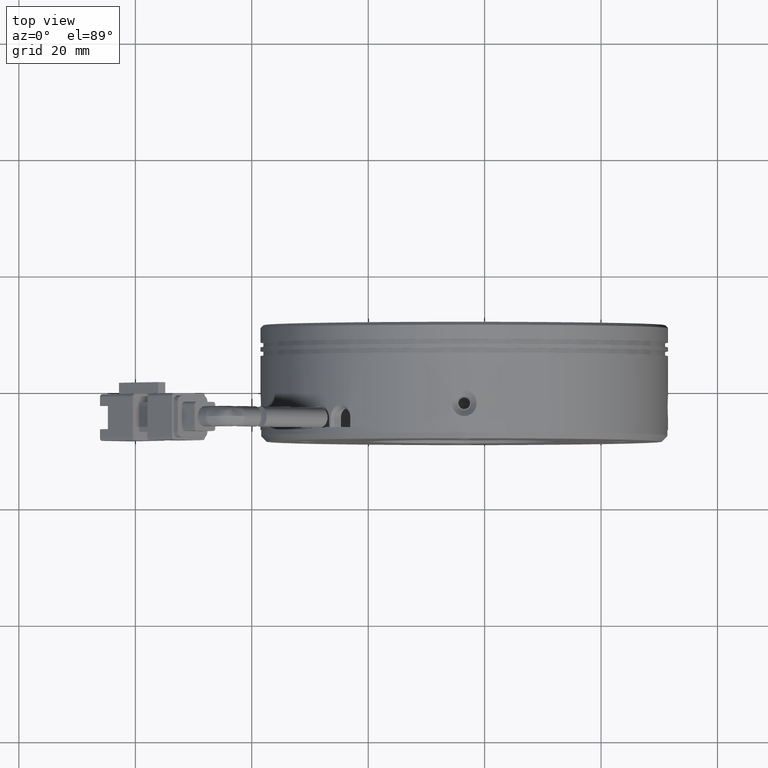
[diagram: clean part render]
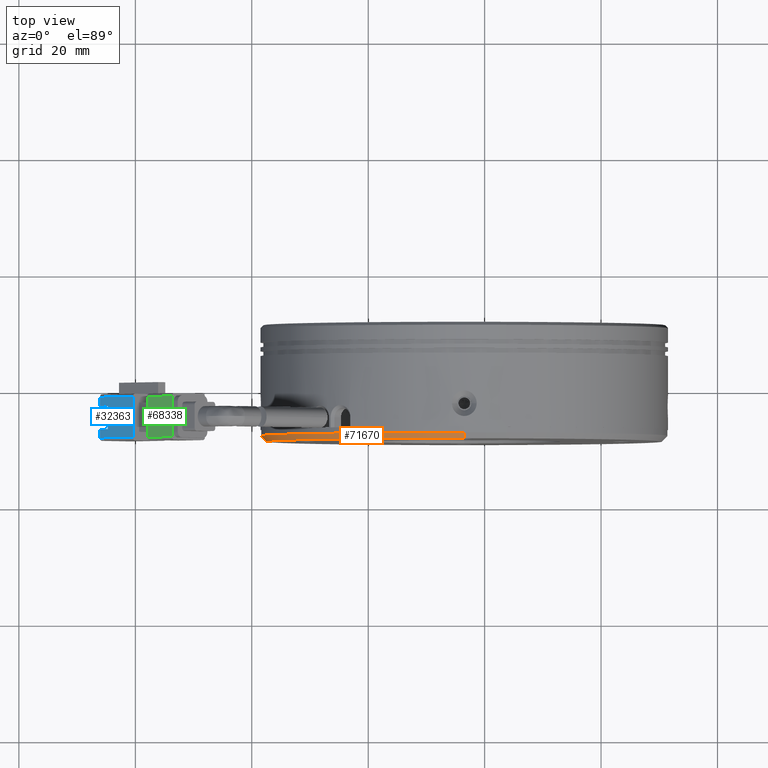
[diagram: same view with three faces highlighted in distinct colors, each labeled with its STEP entity id]
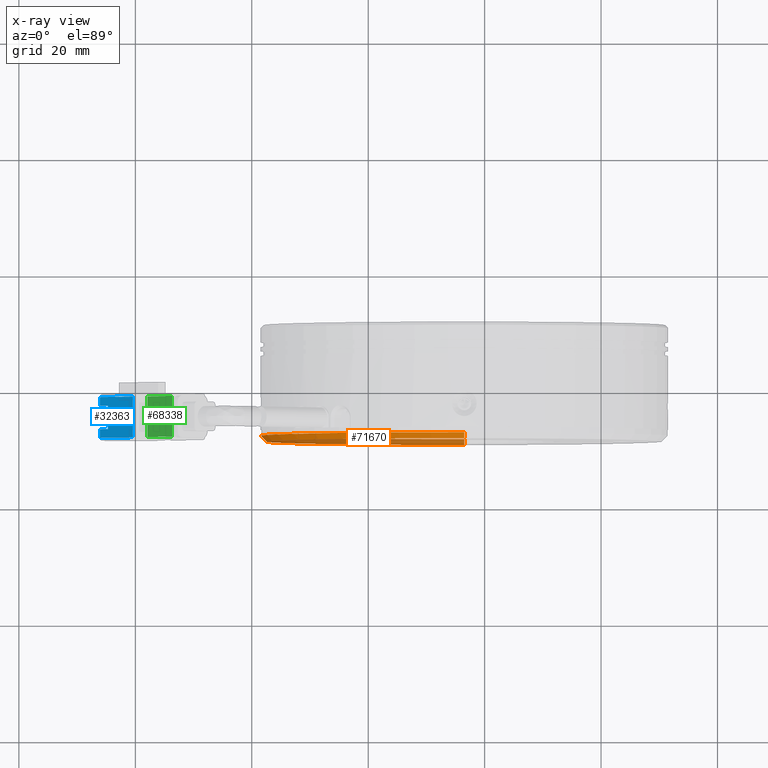
[diagram: x-ray of the same camera — body ghosted, the three highlighted faces saturated]
A machine part, top view with three faces highlighted in distinct colors.
The next image is the same camera in x-ray (body ghosted, the three faces saturated) — at least one of them is partly hidden behind the body in this view.
Their STEP definitions:

[orange] entity #71670 — the highlighted conical surface has half-angle 45 deg.
#548 = ORIENTED_EDGE ( 'NONE', *, *, #30990, .F. ) ;
#6339 = LINE ( 'NONE', #71290, #43441 ) ;
#7303 = LINE ( 'NONE', #46309, #42199 ) ;
#8030 = VERTEX_POINT ( 'NONE', #73250 ) ;
#13613 = VERTEX_POINT ( 'NONE', #13766 ) ;
#13766 = CARTESIAN_POINT ( 'NONE',  ( -3.499229287090534200, 32.07623868994506500, -34.99999999999999300 ) ) ;
#16417 = DIRECTION ( 'NONE',  ( 0.0000000000000000000, -1.000000000000000000, -0.0000000000000000000 ) ) ;
#17043 = EDGE_CURVE ( 'NONE', #57185, #13613, #7303, .T. ) ;
#19466 = EDGE_CURVE ( 'NONE', #71513, #8030, #6339, .T. ) ;
#20571 = AXIS2_PLACEMENT_3D ( 'NONE', #63072, #21212, #70080 ) ;
#21212 = DIRECTION ( 'NONE',  ( 0.0000000000000000000, -1.000000000000000000, 0.0000000000000000000 ) ) ;
#21305 = CARTESIAN_POINT ( 'NONE',  ( -3.499229287090534200, 31.07623868994505000, -33.99999999999997900 ) ) ;
#25008 = DIRECTION ( 'NONE',  ( 8.659560562354897100E-017, 0.7071067811865504600, -0.7071067811865445800 ) ) ;
#30990 = EDGE_CURVE ( 'NONE', #71513, #57185, #56039, .T. ) ;
#31547 = CIRCLE ( 'NONE', #20571, 34.99999999999999300 ) ;
#32343 = ORIENTED_EDGE ( 'NONE', *, *, #17043, .F. ) ;
#32784 = ORIENTED_EDGE ( 'NONE', *, *, #19466, .T. ) ;
#35665 = AXIS2_PLACEMENT_3D ( 'NONE', #51309, #58353, #44616 ) ;
#39439 = CONICAL_SURFACE ( 'NONE', #35665, 34.99999999999999300, 0.7853981633974441700 ) ;
#41259 = CARTESIAN_POINT ( 'NONE',  ( -3.499229287090538600, 31.07623868994505000, 33.99999999999997900 ) ) ;
#42199 = VECTOR ( 'NONE', #25008, 1000.000000000000000 ) ;
#43441 = VECTOR ( 'NONE', #78612, 1000.000000000000000 ) ;
#44616 = DIRECTION ( 'NONE',  ( 0.0000000000000000000, 0.0000000000000000000, 1.000000000000000000 ) ) ;
#46309 = CARTESIAN_POINT ( 'NONE',  ( -3.499229287090534200, 32.07623868994506500, -34.99999999999999300 ) ) ;
#51309 = CARTESIAN_POINT ( 'NONE',  ( -3.499229287090538600, 32.07623868994506500, 0.0000000000000000000 ) ) ;
#56039 = CIRCLE ( 'NONE', #74282, 33.99999999999997900 ) ;
#57185 = VERTEX_POINT ( 'NONE', #21305 ) ;
#58219 = EDGE_LOOP ( 'NONE', ( #32343, #548, #32784, #85386 ) ) ;
#58233 = CARTESIAN_POINT ( 'NONE',  ( -3.499229287090538600, 31.07623868994505000, 0.0000000000000000000 ) ) ;
#58353 = DIRECTION ( 'NONE',  ( -0.0000000000000000000, 1.000000000000000000, 0.0000000000000000000 ) ) ;
#63072 = CARTESIAN_POINT ( 'NONE',  ( -3.499229287090538600, 32.07623868994506500, 0.0000000000000000000 ) ) ;
#65253 = DIRECTION ( 'NONE',  ( 0.0000000000000000000, 0.0000000000000000000, 1.000000000000000000 ) ) ;
#65574 = FACE_OUTER_BOUND ( 'NONE', #58219, .T. ) ;
#70080 = DIRECTION ( 'NONE',  ( 0.0000000000000000000, 0.0000000000000000000, 1.000000000000000000 ) ) ;
#71290 = CARTESIAN_POINT ( 'NONE',  ( -3.499229287090538600, 32.07623868994506500, 34.99999999999999300 ) ) ;
#71513 = VERTEX_POINT ( 'NONE', #41259 ) ;
#71670 = ADVANCED_FACE ( 'NONE', ( #65574 ), #39439, .T. ) ;
#73250 = CARTESIAN_POINT ( 'NONE',  ( -3.499229287090538600, 32.07623868994506500, 34.99999999999999300 ) ) ;
#74282 = AXIS2_PLACEMENT_3D ( 'NONE', #58233, #16417, #65253 ) ;
#76962 = EDGE_CURVE ( 'NONE', #8030, #13613, #31547, .T. ) ;
#78612 = DIRECTION ( 'NONE',  ( 0.0000000000000000000, 0.7071067811865504600, 0.7071067811865445800 ) ) ;
#85386 = ORIENTED_EDGE ( 'NONE', *, *, #76962, .T. ) ;

[blue] entity #32363 — the highlighted planar face has unit normal (0.7071, 0, -0.7071).
#2017 = EDGE_CURVE ( 'NONE', #69202, #64793, #53233, .T. ) ;
#2303 = CARTESIAN_POINT ( 'NONE',  ( -66.07817942209989300, 36.77623868994508200, 25.10229073212247300 ) ) ;
#3552 = DIRECTION ( 'NONE',  ( -1.145450188838179900E-015, -1.000000000000000000, -1.251682674090831700E-015 ) ) ;
#4114 = CARTESIAN_POINT ( 'NONE',  ( -66.07817942209986500, 31.27623868994507800, 25.10229073212249400 ) ) ;
#4629 = EDGE_CURVE ( 'NONE', #61170, #69202, #25000, .T. ) ;
#5102 = EDGE_CURVE ( 'NONE', #68939, #29608, #60448, .T. ) ;
#6445 = VECTOR ( 'NONE', #28066, 1000.000000000000000 ) ;
#9054 = VECTOR ( 'NONE', #25814, 1000.000000000000000 ) ;
#15193 = CARTESIAN_POINT ( 'NONE',  ( -66.07817942209986500, 32.77623868994508200, 25.10229073212249400 ) ) ;
#17302 = LINE ( 'NONE', #17592, #52222 ) ;
#17592 = CARTESIAN_POINT ( 'NONE',  ( -66.07817942209990700, 38.27623868994507500, 25.10229073212246200 ) ) ;
#17610 = CARTESIAN_POINT ( 'NONE',  ( -64.72150315198392400, 32.77623868994507500, 26.45896700223844500 ) ) ;
#17835 = EDGE_CURVE ( 'NONE', #64793, #19640, #27671, .T. ) ;
#18262 = LINE ( 'NONE', #59592, #34581 ) ;
#18878 = VECTOR ( 'NONE', #71043, 1000.000000000000000 ) ;
#19640 = VERTEX_POINT ( 'NONE', #4114 ) ;
#20716 = VERTEX_POINT ( 'NONE', #74688 ) ;
#23408 = EDGE_CURVE ( 'NONE', #68939, #19640, #18262, .T. ) ;
#23675 = DIRECTION ( 'NONE',  ( 0.7071067811865463500, 2.958228394578794300E-031, -0.7071067811865487900 ) ) ;
#24788 = DIRECTION ( 'NONE',  ( -1.145450188838179900E-015, -1.000000000000000000, -1.251682674090831700E-015 ) ) ;
#25000 = LINE ( 'NONE', #62904, #6445 ) ;
#25814 = DIRECTION ( 'NONE',  ( -0.7071067811865487900, 8.048144702619595500E-016, -0.7071067811865463500 ) ) ;
#26937 = FACE_OUTER_BOUND ( 'NONE', #68657, .T. ) ;
#27641 = CARTESIAN_POINT ( 'NONE',  ( -66.07817942209985100, 38.27623868994507500, 25.10229073212251200 ) ) ;
#27671 = LINE ( 'NONE', #52790, #62654 ) ;
#28066 = DIRECTION ( 'NONE',  ( 0.7071067811865487900, -8.048144702619595500E-016, 0.7071067811865463500 ) ) ;
#29381 = DIRECTION ( 'NONE',  ( 5.690897695192913200E-016, 1.000000000000000000, 5.690897695192897500E-016 ) ) ;
#29608 = VERTEX_POINT ( 'NONE', #17610 ) ;
#31248 = EDGE_CURVE ( 'NONE', #20716, #78843, #88692, .T. ) ;
#31576 = DIRECTION ( 'NONE',  ( 5.690897695192913200E-016, 1.000000000000000000, 5.690897695192897500E-016 ) ) ;
#32363 = ADVANCED_FACE ( 'NONE', ( #26937 ), #65202, .F. ) ;
#32384 = CARTESIAN_POINT ( 'NONE',  ( -60.42132517260747400, 38.27623868994506800, 30.75914498161489500 ) ) ;
#33563 = ORIENTED_EDGE ( 'NONE', *, *, #5102, .F. ) ;
#34581 = VECTOR ( 'NONE', #24788, 1000.000000000000000 ) ;
#41248 = ORIENTED_EDGE ( 'NONE', *, *, #23408, .T. ) ;
#42564 = EDGE_CURVE ( 'NONE', #29608, #20716, #78983, .T. ) ;
#52222 = VECTOR ( 'NONE', #31576, 1000.000000000000000 ) ;
#52790 = CARTESIAN_POINT ( 'NONE',  ( -66.07817942209986500, 31.27623868994507800, 25.10229073212250100 ) ) ;
#53233 = LINE ( 'NONE', #59428, #69620 ) ;
#54448 = ORIENTED_EDGE ( 'NONE', *, *, #81905, .F. ) ;
#55399 = ORIENTED_EDGE ( 'NONE', *, *, #17835, .F. ) ;
#58119 = ORIENTED_EDGE ( 'NONE', *, *, #42564, .F. ) ;
#59428 = CARTESIAN_POINT ( 'NONE',  ( -60.42132517260748900, 38.27623868994508200, 30.75914498161489900 ) ) ;
#59592 = CARTESIAN_POINT ( 'NONE',  ( -66.07817942209986500, 38.27623868994507500, 25.10229073212249800 ) ) ;
#60448 = LINE ( 'NONE', #15193, #18878 ) ;
#61170 = VERTEX_POINT ( 'NONE', #27641 ) ;
#62654 = VECTOR ( 'NONE', #66866, 1000.000000000000000 ) ;
#62904 = CARTESIAN_POINT ( 'NONE',  ( -66.07817942209986500, 38.27623868994507500, 25.10229073212249800 ) ) ;
#64793 = VERTEX_POINT ( 'NONE', #78620 ) ;
#65202 = PLANE ( 'NONE',  #86707 ) ;
#65490 = CARTESIAN_POINT ( 'NONE',  ( -66.07817942209986500, 38.27623868994507500, 25.10229073212249800 ) ) ;
#66866 = DIRECTION ( 'NONE',  ( -0.7071067811865487900, 1.695028902782227100E-015, -0.7071067811865463500 ) ) ;
#67027 = VECTOR ( 'NONE', #29381, 1000.000000000000000 ) ;
#67658 = CARTESIAN_POINT ( 'NONE',  ( -66.07817942209986500, 36.77623868994508200, 25.10229073212249800 ) ) ;
#68657 = EDGE_LOOP ( 'NONE', ( #72432, #58119, #33563, #41248, #55399, #70895, #71815, #54448 ) ) ;
#68939 = VERTEX_POINT ( 'NONE', #70935 ) ;
#69202 = VERTEX_POINT ( 'NONE', #32384 ) ;
#69620 = VECTOR ( 'NONE', #3552, 1000.000000000000000 ) ;
#70895 = ORIENTED_EDGE ( 'NONE', *, *, #2017, .F. ) ;
#70935 = CARTESIAN_POINT ( 'NONE',  ( -66.07817942209985100, 32.77623868994507500, 25.10229073212249400 ) ) ;
#71043 = DIRECTION ( 'NONE',  ( 0.7071067811865487900, -8.048144702619595500E-016, 0.7071067811865463500 ) ) ;
#71815 = ORIENTED_EDGE ( 'NONE', *, *, #4629, .F. ) ;
#72432 = ORIENTED_EDGE ( 'NONE', *, *, #31248, .F. ) ;
#72499 = DIRECTION ( 'NONE',  ( -0.7071067811865487900, 8.048144702619595500E-016, -0.7071067811865463500 ) ) ;
#74688 = CARTESIAN_POINT ( 'NONE',  ( -64.72150315198391000, 36.77623868994507500, 26.45896700223846000 ) ) ;
#78251 = CARTESIAN_POINT ( 'NONE',  ( -64.72150315198388200, 38.27623868994507500, 26.45896700223848100 ) ) ;
#78620 = CARTESIAN_POINT ( 'NONE',  ( -60.42132517260750300, 31.27623868994506400, 30.75914498161486300 ) ) ;
#78843 = VERTEX_POINT ( 'NONE', #2303 ) ;
#78983 = LINE ( 'NONE', #78251, #67027 ) ;
#81905 = EDGE_CURVE ( 'NONE', #78843, #61170, #17302, .T. ) ;
#86707 = AXIS2_PLACEMENT_3D ( 'NONE', #65490, #23675, #72499 ) ;
#88692 = LINE ( 'NONE', #67658, #9054 ) ;

[green] entity #68338 — the highlighted planar face has unit normal (0.7071, 0, -0.7071).
#4248 = FACE_OUTER_BOUND ( 'NONE', #26737, .T. ) ;
#9345 = DIRECTION ( 'NONE',  ( -0.7071067811865485700, 8.048144702619595500E-016, -0.7071067811865465700 ) ) ;
#11038 = VECTOR ( 'NONE', #73019, 1000.000000000000000 ) ;
#11687 = DIRECTION ( 'NONE',  ( -5.504740509342574500E-016, -1.000000000000000000, -5.877054881043237200E-016 ) ) ;
#14526 = LINE ( 'NONE', #77691, #42890 ) ;
#14710 = EDGE_CURVE ( 'NONE', #56948, #46149, #48135, .T. ) ;
#14712 = ORIENTED_EDGE ( 'NONE', *, *, #25270, .F. ) ;
#15445 = VECTOR ( 'NONE', #9345, 1000.000000000000000 ) ;
#20039 = AXIS2_PLACEMENT_3D ( 'NONE', #62825, #20976, #69851 ) ;
#20976 = DIRECTION ( 'NONE',  ( 0.7071067811865465700, 2.632660169627591600E-017, -0.7071067811865485700 ) ) ;
#24198 = CARTESIAN_POINT ( 'NONE',  ( -57.94645143845453100, 38.27623868994506000, 33.23401871576781000 ) ) ;
#25270 = EDGE_CURVE ( 'NONE', #46149, #62296, #14526, .T. ) ;
#25446 = CARTESIAN_POINT ( 'NONE',  ( -53.70381075133520500, 38.27623868994504600, 37.47665940288705100 ) ) ;
#26737 = EDGE_LOOP ( 'NONE', ( #35553, #27268, #14712, #38373 ) ) ;
#27268 = ORIENTED_EDGE ( 'NONE', *, *, #63658, .F. ) ;
#28837 = DIRECTION ( 'NONE',  ( 0.7071067811865485700, -8.048144702619595500E-016, 0.7071067811865465700 ) ) ;
#33235 = CARTESIAN_POINT ( 'NONE',  ( -57.94645143845455200, 31.27623868994505700, 33.23401871576776800 ) ) ;
#33965 = LINE ( 'NONE', #85883, #15445 ) ;
#34272 = VERTEX_POINT ( 'NONE', #61201 ) ;
#35553 = ORIENTED_EDGE ( 'NONE', *, *, #78849, .F. ) ;
#38373 = ORIENTED_EDGE ( 'NONE', *, *, #14710, .F. ) ;
#39283 = VECTOR ( 'NONE', #11687, 1000.000000000000000 ) ;
#42890 = VECTOR ( 'NONE', #28837, 1000.000000000000000 ) ;
#46149 = VERTEX_POINT ( 'NONE', #60074 ) ;
#48135 = LINE ( 'NONE', #24198, #11038 ) ;
#56948 = VERTEX_POINT ( 'NONE', #33235 ) ;
#57877 = LINE ( 'NONE', #25446, #39283 ) ;
#60074 = CARTESIAN_POINT ( 'NONE',  ( -57.94645143845454500, 38.27623868994506000, 33.23401871576778200 ) ) ;
#61201 = CARTESIAN_POINT ( 'NONE',  ( -53.70381075133523300, 31.27623868994505000, 37.47665940288700900 ) ) ;
#62296 = VERTEX_POINT ( 'NONE', #62644 ) ;
#62644 = CARTESIAN_POINT ( 'NONE',  ( -53.70381075133520500, 38.27623868994505300, 37.47665940288705100 ) ) ;
#62825 = CARTESIAN_POINT ( 'NONE',  ( -53.70381075133520500, 38.27623868994504600, 37.47665940288705100 ) ) ;
#63658 = EDGE_CURVE ( 'NONE', #62296, #34272, #57877, .T. ) ;
#68338 = ADVANCED_FACE ( 'NONE', ( #4248 ), #69543, .F. ) ;
#69543 = PLANE ( 'NONE',  #20039 ) ;
#69851 = DIRECTION ( 'NONE',  ( -0.7071067811865485700, 8.048144702619595500E-016, -0.7071067811865465700 ) ) ;
#73019 = DIRECTION ( 'NONE',  ( 1.145450188838179900E-015, 1.000000000000000000, 1.251682674090831700E-015 ) ) ;
#77691 = CARTESIAN_POINT ( 'NONE',  ( -53.70381075133520500, 38.27623868994506800, 37.47665940288705100 ) ) ;
#78849 = EDGE_CURVE ( 'NONE', #34272, #56948, #33965, .T. ) ;
#85883 = CARTESIAN_POINT ( 'NONE',  ( -53.70381075133520500, 31.27623868994505000, 37.47665940288704400 ) ) ;